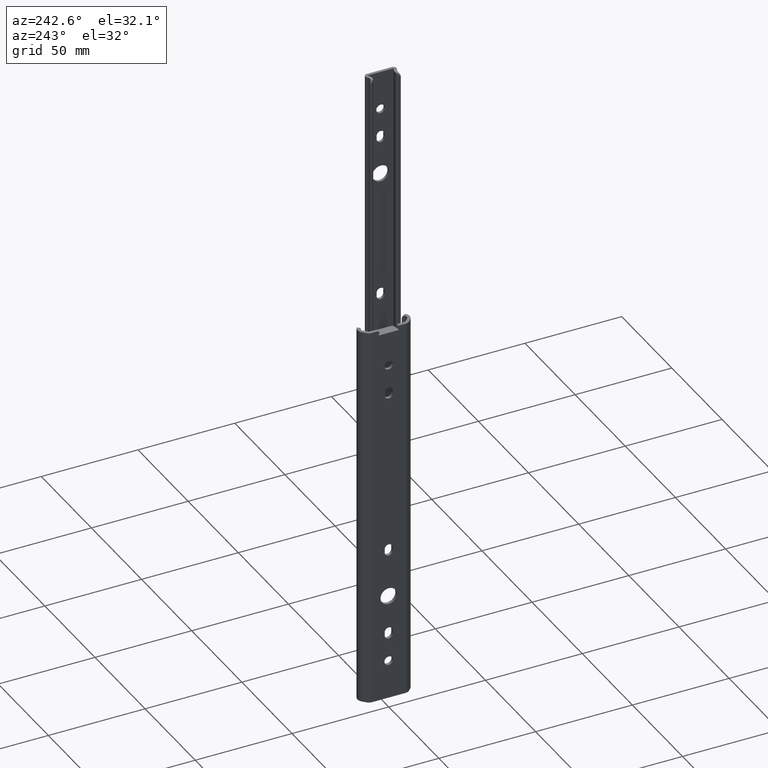
[diagram: clean part render]
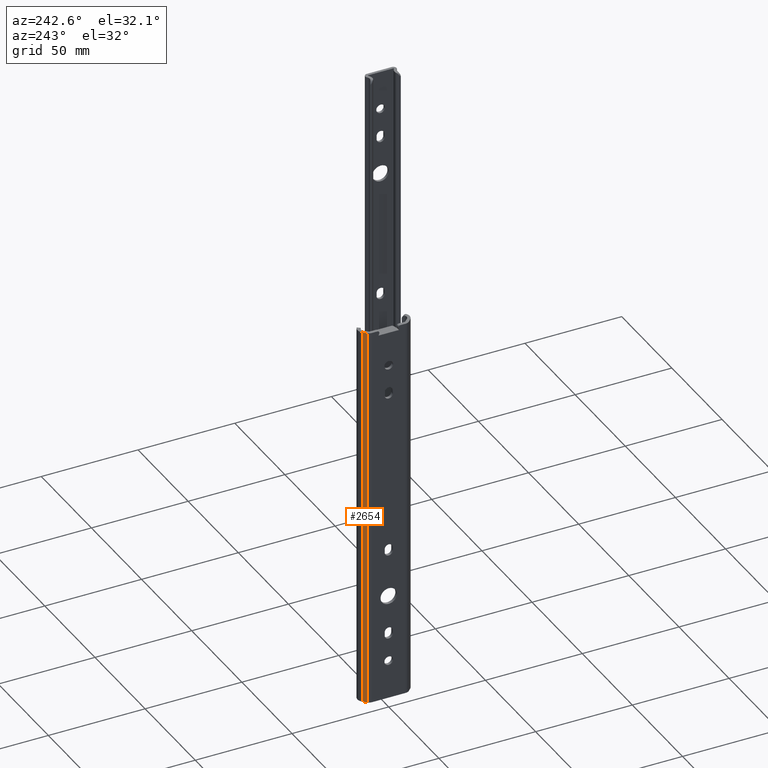
[diagram: same view with one face highlighted and labeled with its STEP entity id]
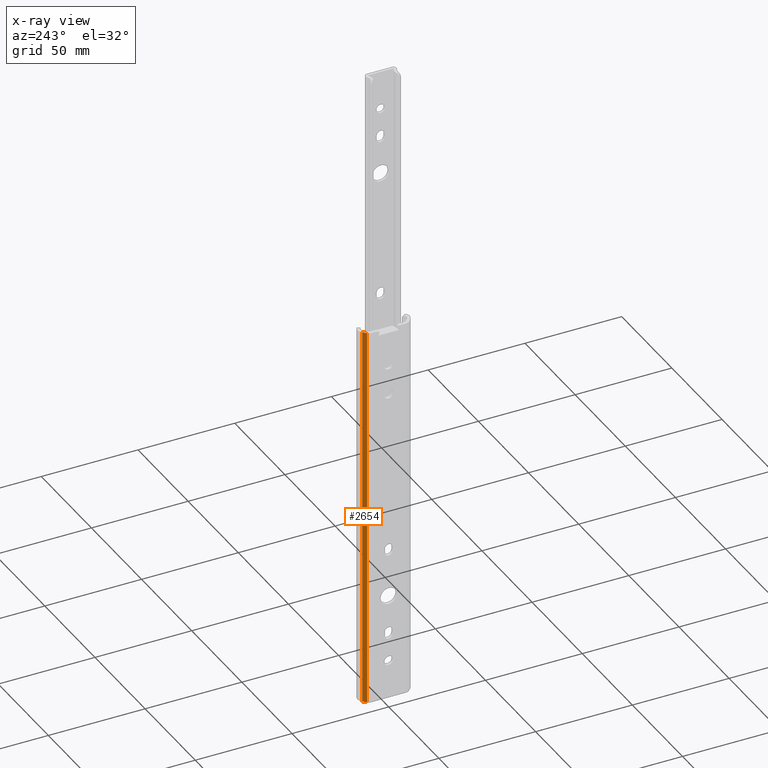
[diagram: x-ray of the same camera — body ghosted, the highlighted face saturated]
A machine part, auxiliary view. The second image highlights one B-rep face of the part: STEP entity #2654.
The next image is the same camera in x-ray: the body ghosted, the highlighted face saturated — about 0% of this face is hidden behind the body in this view.
In plain terms, the highlighted planar face has unit normal (-0.7071, 0.7071, 0).
Its self-contained STEP definition (entity closure, byte-faithful):
#258 = DIRECTION ( 'NONE',  ( 0.0000000000000000000, 0.0000000000000000000, 1.000000000000000000 ) ) ;
#271 = ORIENTED_EDGE ( 'NONE', *, *, #1882, .T. ) ;
#393 = CARTESIAN_POINT ( 'NONE',  ( 2.413999282124992707, 12.34600071787499864, 0.0000000000000000000 ) ) ;
#863 = CARTESIAN_POINT ( 'NONE',  ( 0.8786796564404255605, 10.81068109219052076, -200.0000000000000000 ) ) ;
#1065 = DIRECTION ( 'NONE',  ( -0.7071067811865682229, -0.7071067811865268116, 0.0000000000000000000 ) ) ;
#1181 = LINE ( 'NONE', #863, #1839 ) ;
#1186 = ORIENTED_EDGE ( 'NONE', *, *, #2099, .T. ) ;
#1191 = DIRECTION ( 'NONE',  ( -0.7071067811865682229, -0.7071067811865268116, 0.0000000000000000000 ) ) ;
#1382 = VERTEX_POINT ( 'NONE', #3782 ) ;
#1416 = VECTOR ( 'NONE', #1065, 1000.000000000000114 ) ;
#1474 = CARTESIAN_POINT ( 'NONE',  ( 2.413999282124992707, 12.34600071787499864, -200.0000000000000000 ) ) ;
#1612 = CARTESIAN_POINT ( 'NONE',  ( 2.413999282124992707, 12.34600071787499864, -200.0000000000000000 ) ) ;
#1645 = VERTEX_POINT ( 'NONE', #3241 ) ;
#1666 = EDGE_CURVE ( 'NONE', #4250, #3604, #4034, .T. ) ;
#1718 = CARTESIAN_POINT ( 'NONE',  ( 2.413999282124992707, 12.34600071787499864, 0.0000000000000000000 ) ) ;
#1767 = ORIENTED_EDGE ( 'NONE', *, *, #1666, .F. ) ;
#1839 = VECTOR ( 'NONE', #3787, 1000.000000000000000 ) ;
#1882 = EDGE_CURVE ( 'NONE', #1645, #1382, #4208, .T. ) ;
#2099 = EDGE_CURVE ( 'NONE', #1382, #3604, #1181, .T. ) ;
#2344 = EDGE_CURVE ( 'NONE', #1645, #4250, #3885, .T. ) ;
#2427 = ORIENTED_EDGE ( 'NONE', *, *, #2344, .F. ) ;
#2654 = ADVANCED_FACE ( 'NONE', ( #3774 ), #2847, .T. ) ;
#2779 = CARTESIAN_POINT ( 'NONE',  ( 2.413999282124992707, 12.34600071787499864, -200.0000000000000000 ) ) ;
#2847 = PLANE ( 'NONE',  #3986 ) ;
#2974 = EDGE_LOOP ( 'NONE', ( #1767, #2427, #271, #1186 ) ) ;
#3061 = DIRECTION ( 'NONE',  ( -0.7071067811865682229, -0.7071067811865268116, 0.0000000000000000000 ) ) ;
#3157 = VECTOR ( 'NONE', #3061, 1000.000000000000114 ) ;
#3227 = VECTOR ( 'NONE', #258, 1000.000000000000000 ) ;
#3241 = CARTESIAN_POINT ( 'NONE',  ( 2.413999282124992707, 12.34600071787499864, -200.0000000000000000 ) ) ;
#3587 = CARTESIAN_POINT ( 'NONE',  ( 0.8786796564404255605, 10.81068109219052076, 0.0000000000000000000 ) ) ;
#3604 = VERTEX_POINT ( 'NONE', #3587 ) ;
#3774 = FACE_OUTER_BOUND ( 'NONE', #2974, .T. ) ;
#3782 = CARTESIAN_POINT ( 'NONE',  ( 0.8786796564404255605, 10.81068109219052076, -200.0000000000000000 ) ) ;
#3787 = DIRECTION ( 'NONE',  ( 0.0000000000000000000, 0.0000000000000000000, 1.000000000000000000 ) ) ;
#3885 = LINE ( 'NONE', #1612, #3227 ) ;
#3986 = AXIS2_PLACEMENT_3D ( 'NONE', #2779, #4165, #1191 ) ;
#4034 = LINE ( 'NONE', #1718, #1416 ) ;
#4165 = DIRECTION ( 'NONE',  ( -0.7071067811865268116, 0.7071067811865682229, 0.0000000000000000000 ) ) ;
#4208 = LINE ( 'NONE', #1474, #3157 ) ;
#4250 = VERTEX_POINT ( 'NONE', #393 ) ;